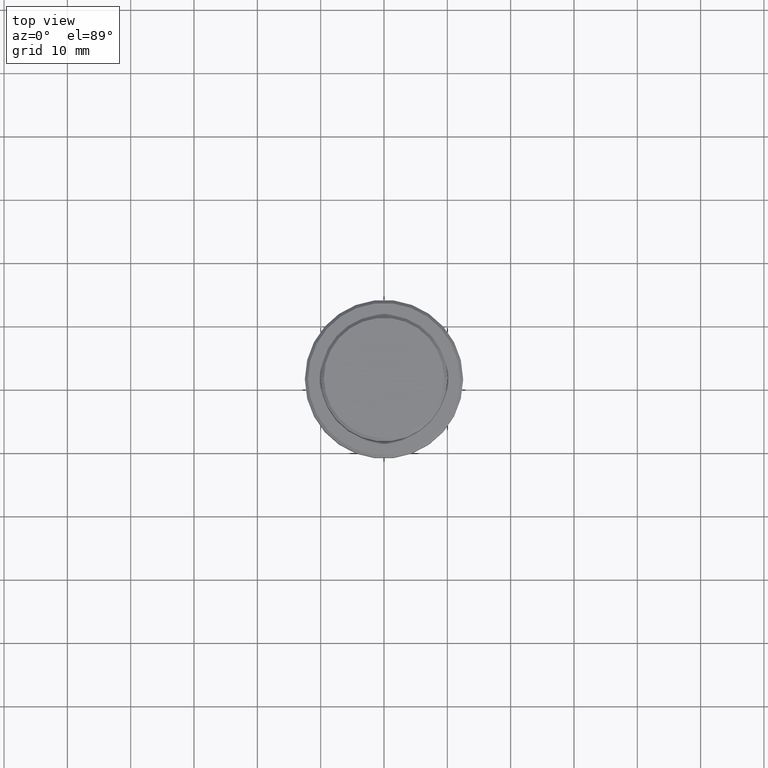
[diagram: clean part render]
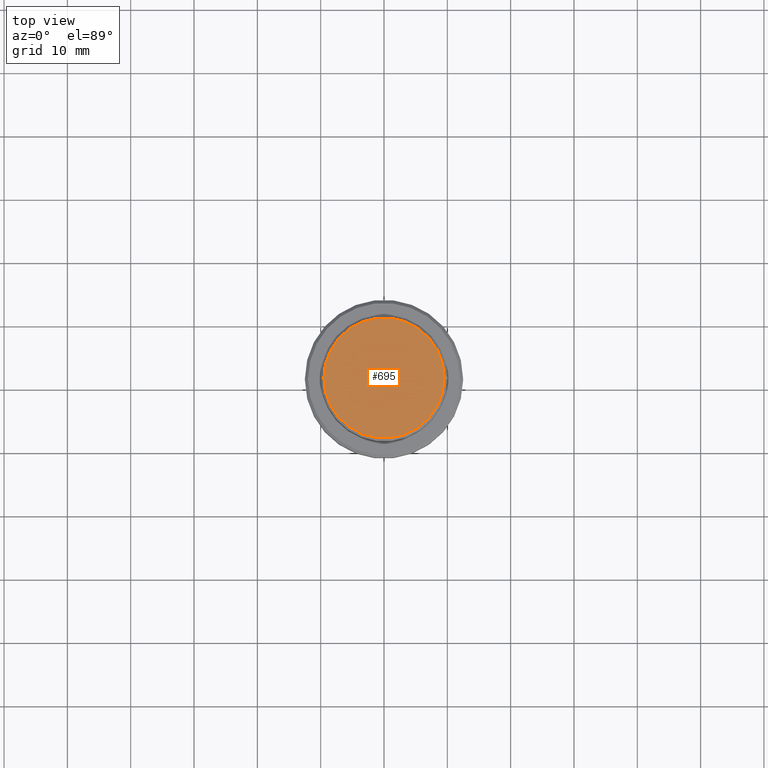
[diagram: same view with one face highlighted and labeled with its STEP entity id]
A machine part, top view. The second image highlights one B-rep face of the part: STEP entity #695.
In plain terms, the highlighted planar face has unit normal (0, -0, 1).
Its self-contained STEP definition (entity closure, byte-faithful):
#55 = EDGE_LOOP ( 'NONE', ( #349, #1102 ) ) ;
#163 = DIRECTION ( 'NONE',  ( 1.000000000000000000, 0.000000000000000000, 0.000000000000000000 ) ) ;
#235 = AXIS2_PLACEMENT_3D ( 'NONE', #1008, #999, #891 ) ;
#349 = ORIENTED_EDGE ( 'NONE', *, *, #1028, .T. ) ;
#464 = CIRCLE ( 'NONE', #235, 9.500000000000008882 ) ;
#496 = DIRECTION ( 'NONE',  ( 1.000000000000000000, 0.000000000000000000, 0.000000000000000000 ) ) ;
#580 = EDGE_CURVE ( 'NONE', #1099, #597, #1114, .T. ) ;
#597 = VERTEX_POINT ( 'NONE', #885 ) ;
#613 = DIRECTION ( 'NONE',  ( 0.000000000000000000, -0.000000000000000000, 1.000000000000000000 ) ) ;
#626 = CARTESIAN_POINT ( 'NONE',  ( 0.000000000000000000, 0.000000000000000000, 0.000000000000000000 ) ) ;
#692 = AXIS2_PLACEMENT_3D ( 'NONE', #626, #613, #496 ) ;
#695 = ADVANCED_FACE ( 'NONE', ( #939 ), #719, .T. ) ;
#719 = PLANE ( 'NONE',  #692 ) ;
#809 = DIRECTION ( 'NONE',  ( -0.000000000000000000, -0.000000000000000000, 1.000000000000000000 ) ) ;
#885 = CARTESIAN_POINT ( 'NONE',  ( -9.500000000000008882, 0.000000000000000000, 0.000000000000000000 ) ) ;
#891 = DIRECTION ( 'NONE',  ( 1.000000000000000000, 0.000000000000000000, 0.000000000000000000 ) ) ;
#894 = CARTESIAN_POINT ( 'NONE',  ( 0.000000000000000000, 0.000000000000000000, 0.000000000000000000 ) ) ;
#939 = FACE_OUTER_BOUND ( 'NONE', #55, .T. ) ;
#999 = DIRECTION ( 'NONE',  ( -0.000000000000000000, -0.000000000000000000, 1.000000000000000000 ) ) ;
#1008 = CARTESIAN_POINT ( 'NONE',  ( 0.000000000000000000, 0.000000000000000000, 0.000000000000000000 ) ) ;
#1028 = EDGE_CURVE ( 'NONE', #597, #1099, #464, .T. ) ;
#1030 = CARTESIAN_POINT ( 'NONE',  ( 9.500000000000008882, 1.194030629168669864E-15, 0.000000000000000000 ) ) ;
#1099 = VERTEX_POINT ( 'NONE', #1030 ) ;
#1102 = ORIENTED_EDGE ( 'NONE', *, *, #580, .T. ) ;
#1114 = CIRCLE ( 'NONE', #1184, 9.500000000000008882 ) ;
#1184 = AXIS2_PLACEMENT_3D ( 'NONE', #894, #809, #163 ) ;